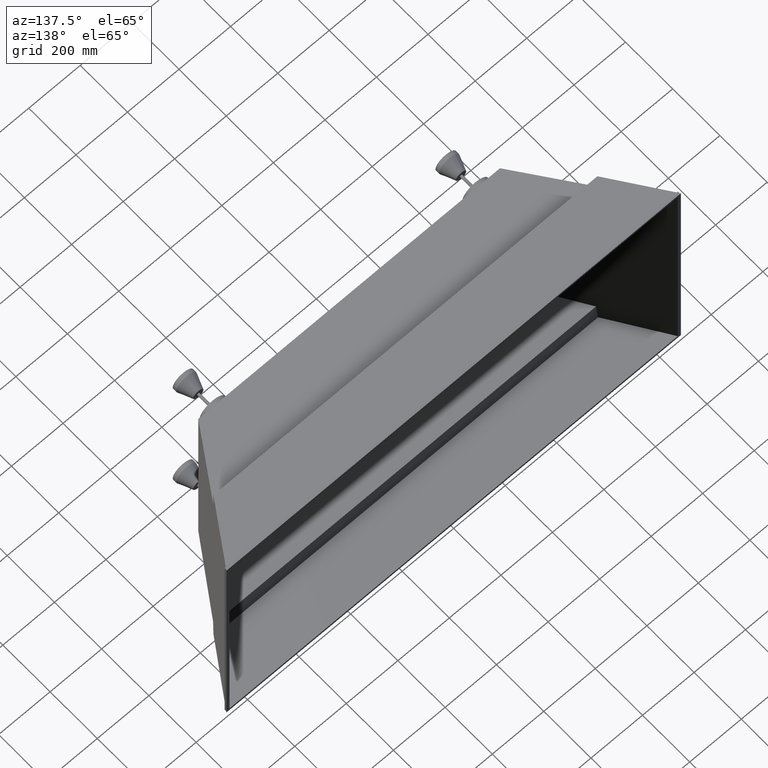
[diagram: clean part render]
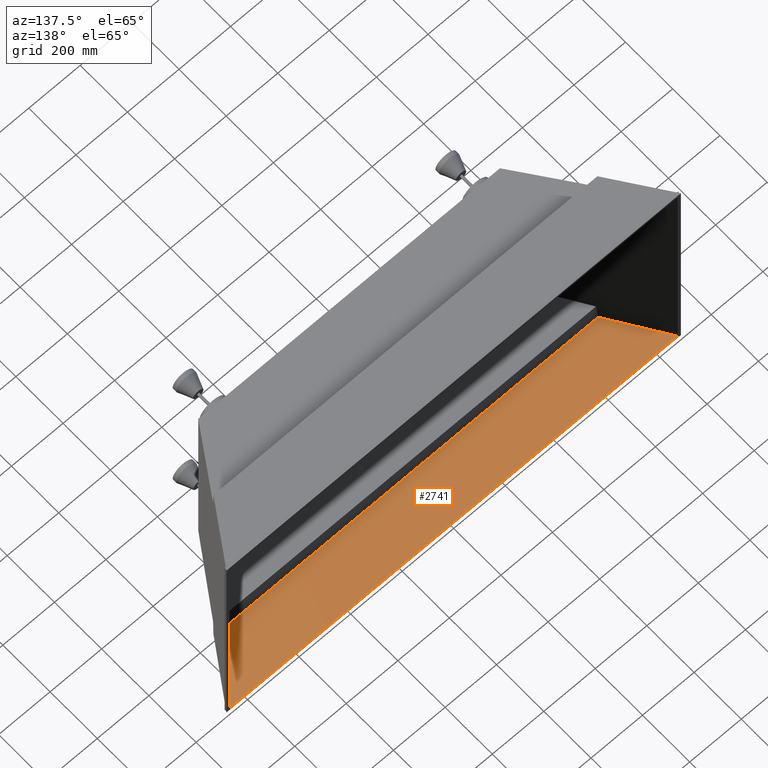
[diagram: same view with one face highlighted and labeled with its STEP entity id]
A machine part, auxiliary view. The second image highlights one B-rep face of the part: STEP entity #2741.
In plain terms, the highlighted planar face has unit normal (0, -0.0461, -0.9989).
Its self-contained STEP definition (entity closure, byte-faithful):
#738 = VERTEX_POINT ( 'NONE', #5226 ) ;
#778 = VECTOR ( 'NONE', #8775, 1000.000000000000000 ) ;
#1099 = EDGE_LOOP ( 'NONE', ( #8472, #7826, #5985, #2027 ) ) ;
#1436 = CARTESIAN_POINT ( 'NONE',  ( 739.3995381062355800, -194.9999999999995200, -460.9930715935332200 ) ) ;
#1466 = CARTESIAN_POINT ( 'NONE',  ( 869.9999999999989800, 0.0000000000000000000, -469.9999999999997700 ) ) ;
#1527 = CARTESIAN_POINT ( 'NONE',  ( 782.9330254041570900, -129.9999999999998000, -463.9953810623552500 ) ) ;
#1758 = CARTESIAN_POINT ( 'NONE',  ( -870.0000000000001100, 0.0000000000000000000, -469.9999999999997700 ) ) ;
#2027 = ORIENTED_EDGE ( 'NONE', *, *, #2422, .T. ) ;
#2413 = CARTESIAN_POINT ( 'NONE',  ( 869.9999999999989800, 0.0000000000000000000, -469.9999999999997700 ) ) ;
#2422 = EDGE_CURVE ( 'NONE', #8870, #8327, #2580, .T. ) ;
#2580 = LINE ( 'NONE', #8795, #778 ) ;
#2633 = LINE ( 'NONE', #1758, #2839 ) ;
#2640 = EDGE_CURVE ( 'NONE', #738, #8870, #6045, .T. ) ;
#2741 = ADVANCED_FACE ( 'NONE', ( #5326 ), #2885, .F. ) ;
#2839 = VECTOR ( 'NONE', #8811, 1000.000000000000000 ) ;
#2841 = DIRECTION ( 'NONE',  ( 1.000000000000000000, 0.0000000000000000000, 1.276118419109375500E-016 ) ) ;
#2874 = DIRECTION ( 'NONE',  ( 1.274759320566680800E-016, -0.04614018358382698800, -0.9989349745898633600 ) ) ;
#2885 = PLANE ( 'NONE',  #6332 ) ;
#3425 = CARTESIAN_POINT ( 'NONE',  ( -870.0000000000001100, 0.0000000000000000000, -469.9999999999997700 ) ) ;
#3898 = B_SPLINE_CURVE_WITH_KNOTS ( 'NONE', 3,
 ( #1466, #4932, #1527, #1436 ),
 .UNSPECIFIED., .F., .F.,
 ( 4, 4 ),
 ( 0.0000000000000000000, 0.4503464203233250000 ),
 .UNSPECIFIED. ) ;
#4714 = CARTESIAN_POINT ( 'NONE',  ( 739.3995381062355800, -194.9999999999995200, -460.9930715935332200 ) ) ;
#4932 = CARTESIAN_POINT ( 'NONE',  ( 826.4665127020784900, -64.99999999999990100, -466.9976905311774000 ) ) ;
#5226 = CARTESIAN_POINT ( 'NONE',  ( -870.0000000000001100, 0.0000000000000000000, -469.9999999999997700 ) ) ;
#5326 = FACE_OUTER_BOUND ( 'NONE', #1099, .T. ) ;
#5701 = EDGE_CURVE ( 'NONE', #8042, #8327, #3898, .T. ) ;
#5985 = ORIENTED_EDGE ( 'NONE', *, *, #2640, .T. ) ;
#6045 = B_SPLINE_CURVE_WITH_KNOTS ( 'NONE', 3,
 ( #8134, #8062, #7949, #7937 ),
 .UNSPECIFIED., .F., .F.,
 ( 4, 4 ),
 ( 0.0000000000000000000, 0.4503464203233245600 ),
 .UNSPECIFIED. ) ;
#6332 = AXIS2_PLACEMENT_3D ( 'NONE', #3425, #2874, #2841 ) ;
#7801 = CARTESIAN_POINT ( 'NONE',  ( -739.3995381062359200, -194.9999999999994600, -460.9930715935333300 ) ) ;
#7826 = ORIENTED_EDGE ( 'NONE', *, *, #8417, .T. ) ;
#7937 = CARTESIAN_POINT ( 'NONE',  ( -739.3995381062359200, -194.9999999999994600, -460.9930715935333300 ) ) ;
#7949 = CARTESIAN_POINT ( 'NONE',  ( -782.9330254041573200, -129.9999999999996600, -463.9953810623553600 ) ) ;
#8042 = VERTEX_POINT ( 'NONE', #2413 ) ;
#8062 = CARTESIAN_POINT ( 'NONE',  ( -826.4665127020787200, -64.99999999999981500, -466.9976905311775700 ) ) ;
#8134 = CARTESIAN_POINT ( 'NONE',  ( -870.0000000000001100, 0.0000000000000000000, -469.9999999999997700 ) ) ;
#8327 = VERTEX_POINT ( 'NONE', #4714 ) ;
#8417 = EDGE_CURVE ( 'NONE', #8042, #738, #2633, .T. ) ;
#8472 = ORIENTED_EDGE ( 'NONE', *, *, #5701, .F. ) ;
#8775 = DIRECTION ( 'NONE',  ( 1.000000000000000000, -9.145304129003801000E-018, 1.280342578060416500E-016 ) ) ;
#8795 = CARTESIAN_POINT ( 'NONE',  ( 870.0010999999998400, -194.9999999999995200, -460.9930715935331600 ) ) ;
#8811 = DIRECTION ( 'NONE',  ( -1.000000000000000000, -0.0000000000000000000, -0.0000000000000000000 ) ) ;
#8870 = VERTEX_POINT ( 'NONE', #7801 ) ;